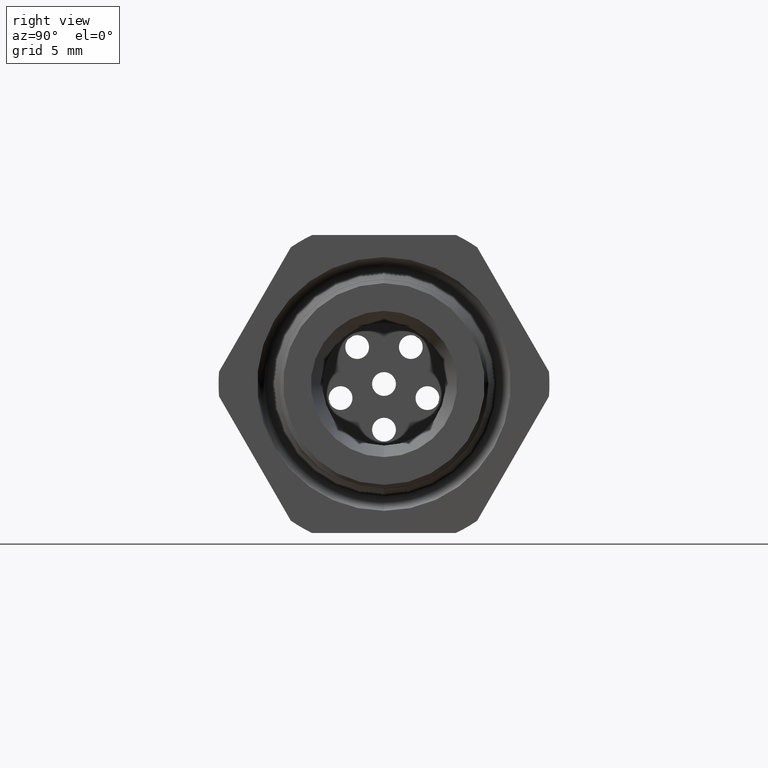
[diagram: clean part render]
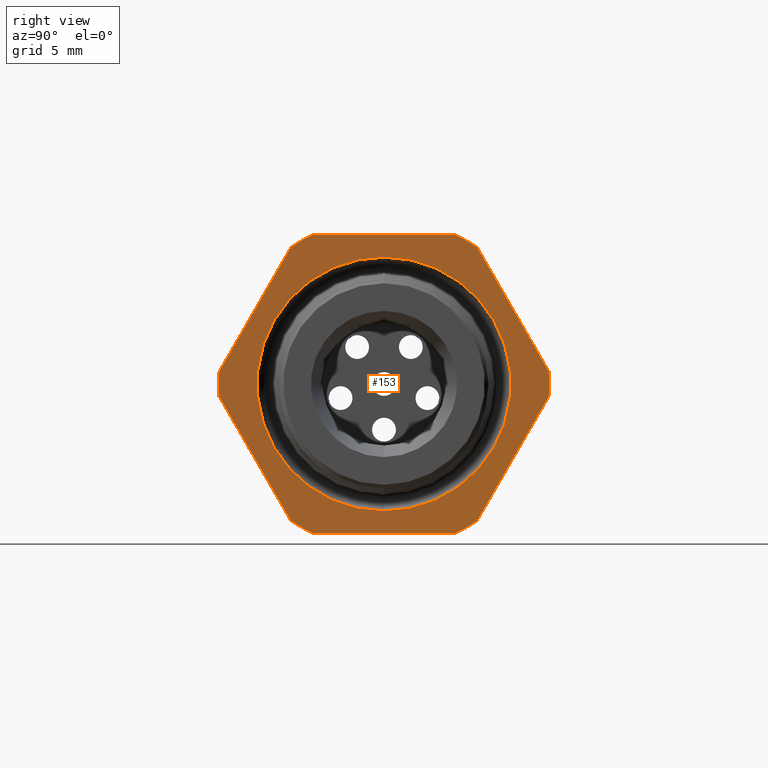
[diagram: same view with one face highlighted and labeled with its STEP entity id]
A machine part, right view. The second image highlights one B-rep face of the part: STEP entity #153.
In plain terms, the highlighted planar face has unit normal (1, 0, 0).
Its self-contained STEP definition (entity closure, byte-faithful):
#74 = EDGE_CURVE ( 'NONE', #75, #76, #2068, .T. ) ;
#75 = VERTEX_POINT ( 'NONE', #2058 ) ;
#76 = VERTEX_POINT ( 'NONE', #2057 ) ;
#77 = ORIENTED_EDGE ( 'NONE', *, *, #78, .T. ) ;
#78 = EDGE_CURVE ( 'NONE', #76, #79, #2056, .T. ) ;
#79 = VERTEX_POINT ( 'NONE', #2109 ) ;
#80 = ORIENTED_EDGE ( 'NONE', *, *, #81, .T. ) ;
#81 = EDGE_CURVE ( 'NONE', #79, #82, #2108, .T. ) ;
#82 = VERTEX_POINT ( 'NONE', #2104 ) ;
#94 = EDGE_LOOP ( 'NONE', ( #154, #156 ) ) ;
#124 = VERTEX_POINT ( 'NONE', #2203 ) ;
#125 = ORIENTED_EDGE ( 'NONE', *, *, #126, .T. ) ;
#126 = EDGE_CURVE ( 'NONE', #124, #127, #2202, .T. ) ;
#127 = VERTEX_POINT ( 'NONE', #2198 ) ;
#128 = ORIENTED_EDGE ( 'NONE', *, *, #129, .T. ) ;
#129 = EDGE_CURVE ( 'NONE', #127, #130, #2197, .T. ) ;
#130 = VERTEX_POINT ( 'NONE', #2192 ) ;
#131 = ORIENTED_EDGE ( 'NONE', *, *, #132, .T. ) ;
#132 = EDGE_CURVE ( 'NONE', #130, #133, #2191, .T. ) ;
#133 = VERTEX_POINT ( 'NONE', #2187 ) ;
#134 = ORIENTED_EDGE ( 'NONE', *, *, #135, .T. ) ;
#135 = EDGE_CURVE ( 'NONE', #133, #75, #2186, .T. ) ;
#139 = ORIENTED_EDGE ( 'NONE', *, *, #140, .T. ) ;
#140 = EDGE_CURVE ( 'NONE', #82, #141, #2174, .T. ) ;
#141 = VERTEX_POINT ( 'NONE', #2236 ) ;
#142 = ORIENTED_EDGE ( 'NONE', *, *, #143, .T. ) ;
#143 = EDGE_CURVE ( 'NONE', #141, #144, #2235, .T. ) ;
#144 = VERTEX_POINT ( 'NONE', #2231 ) ;
#145 = ORIENTED_EDGE ( 'NONE', *, *, #146, .T. ) ;
#146 = EDGE_CURVE ( 'NONE', #144, #147, #2230, .T. ) ;
#147 = VERTEX_POINT ( 'NONE', #2225 ) ;
#148 = ORIENTED_EDGE ( 'NONE', *, *, #149, .T. ) ;
#149 = EDGE_CURVE ( 'NONE', #147, #150, #2224, .T. ) ;
#150 = VERTEX_POINT ( 'NONE', #2220 ) ;
#151 = ORIENTED_EDGE ( 'NONE', *, *, #152, .T. ) ;
#152 = EDGE_CURVE ( 'NONE', #150, #124, #2219, .T. ) ;
#153 = ADVANCED_FACE ( 'NONE', ( #2214, #2213 ), #2212, .T. ) ;
#154 = ORIENTED_EDGE ( 'NONE', *, *, #155, .F. ) ;
#155 = EDGE_CURVE ( 'NONE', #1639, #1636, #2271, .T. ) ;
#156 = ORIENTED_EDGE ( 'NONE', *, *, #1638, .F. ) ;
#157 = EDGE_LOOP ( 'NONE', ( #158, #77, #80, #139, #142, #145, #148, #151, #125, #128, #131, #134 ) ) ;
#158 = ORIENTED_EDGE ( 'NONE', *, *, #74, .T. ) ;
#1636 = VERTEX_POINT ( 'NONE', #4867 ) ;
#1638 = EDGE_CURVE ( 'NONE', #1636, #1639, #4866, .T. ) ;
#1639 = VERTEX_POINT ( 'NONE', #4861 ) ;
#2054 = CARTESIAN_POINT ( 'NONE',  ( -0.3100000000000000000, 0.0000000000000000000, 0.0000000000000000000 ) ) ;
#2055 = AXIS2_PLACEMENT_3D ( 'NONE', #2054, #2111, #2110 ) ;
#2056 = CIRCLE ( 'NONE', #2055, 0.4162500000000000100 ) ;
#2057 = CARTESIAN_POINT ( 'NONE',  ( -0.3100000000000000000, 0.4150909474475088000, -0.03104138925901222000 ) ) ;
#2058 = CARTESIAN_POINT ( 'NONE',  ( -0.3100000000000000000, 0.2344281053908202900, -0.3439586107409879900 ) ) ;
#2059 = DIRECTION ( 'NONE',  ( 0.0000000000000000000, 0.5000000000000000000, 0.8660254037844386000 ) ) ;
#2060 = VECTOR ( 'NONE', #2059, 39.37007874015748900 ) ;
#2061 = CARTESIAN_POINT ( 'NONE',  ( -0.3100000000000000000, 0.5122595264191646100, 0.1372595264191644700 ) ) ;
#2068 = LINE ( 'NONE', #2061, #2060 ) ;
#2104 = CARTESIAN_POINT ( 'NONE',  ( -0.3100000000000000000, 0.2344281053908206000, 0.3439586107409877100 ) ) ;
#2105 = DIRECTION ( 'NONE',  ( 0.0000000000000000000, -0.4999999999999998900, 0.8660254037844386000 ) ) ;
#2106 = VECTOR ( 'NONE', #2105, 39.37007874015748100 ) ;
#2107 = CARTESIAN_POINT ( 'NONE',  ( -0.3100000000000000000, 0.5122595264191646100, -0.1372595264191644500 ) ) ;
#2108 = LINE ( 'NONE', #2107, #2106 ) ;
#2109 = CARTESIAN_POINT ( 'NONE',  ( -0.3100000000000000000, 0.4150909474475088000, 0.03104138925901233200 ) ) ;
#2110 = DIRECTION ( 'NONE',  ( 0.0000000000000000000, 0.0000000000000000000, -1.000000000000000000 ) ) ;
#2111 = DIRECTION ( 'NONE',  ( 1.000000000000000000, 0.0000000000000000000, 0.0000000000000000000 ) ) ;
#2174 = CIRCLE ( 'NONE', #2239, 0.4162499999999999500 ) ;
#2179 = CARTESIAN_POINT ( 'NONE',  ( -0.3100000000000000000, 0.0000000000000000000, 0.0000000000000000000 ) ) ;
#2182 = DIRECTION ( 'NONE',  ( 0.0000000000000000000, 0.0000000000000000000, -1.000000000000000000 ) ) ;
#2183 = DIRECTION ( 'NONE',  ( 1.000000000000000000, 0.0000000000000000000, 0.0000000000000000000 ) ) ;
#2184 = CARTESIAN_POINT ( 'NONE',  ( -0.3100000000000000000, 0.0000000000000000000, 0.0000000000000000000 ) ) ;
#2185 = AXIS2_PLACEMENT_3D ( 'NONE', #2184, #2183, #2182 ) ;
#2186 = CIRCLE ( 'NONE', #2185, 0.4162500000000000100 ) ;
#2187 = CARTESIAN_POINT ( 'NONE',  ( -0.3100000000000000000, 0.1806628420566884800, -0.3750000000000001100 ) ) ;
#2188 = DIRECTION ( 'NONE',  ( 0.0000000000000000000, 1.000000000000000000, 0.0000000000000000000 ) ) ;
#2189 = VECTOR ( 'NONE', #2188, 39.37007874015748100 ) ;
#2190 = CARTESIAN_POINT ( 'NONE',  ( -0.3100000000000000000, 0.7500000000000001100, -0.3750000000000001100 ) ) ;
#2191 = LINE ( 'NONE', #2190, #2189 ) ;
#2192 = CARTESIAN_POINT ( 'NONE',  ( -0.3100000000000000000, -0.1806628420566883900, -0.3750000000000001100 ) ) ;
#2193 = DIRECTION ( 'NONE',  ( 0.0000000000000000000, 0.0000000000000000000, -1.000000000000000000 ) ) ;
#2194 = DIRECTION ( 'NONE',  ( 1.000000000000000000, 0.0000000000000000000, 0.0000000000000000000 ) ) ;
#2195 = CARTESIAN_POINT ( 'NONE',  ( -0.3100000000000000000, 0.0000000000000000000, 0.0000000000000000000 ) ) ;
#2196 = AXIS2_PLACEMENT_3D ( 'NONE', #2195, #2194, #2193 ) ;
#2197 = CIRCLE ( 'NONE', #2196, 0.4162500000000000100 ) ;
#2198 = CARTESIAN_POINT ( 'NONE',  ( -0.3100000000000000000, -0.2344281053908202100, -0.3439586107409880500 ) ) ;
#2199 = DIRECTION ( 'NONE',  ( 0.0000000000000000000, 0.5000000000000003300, -0.8660254037844383700 ) ) ;
#2200 = VECTOR ( 'NONE', #2199, 39.37007874015748100 ) ;
#2201 = CARTESIAN_POINT ( 'NONE',  ( -0.3100000000000000000, -0.1372595264191642800, -0.5122595264191648300 ) ) ;
#2202 = LINE ( 'NONE', #2201, #2200 ) ;
#2203 = CARTESIAN_POINT ( 'NONE',  ( -0.3100000000000000000, -0.4150909474475088000, -0.03104138925901237000 ) ) ;
#2209 = DIRECTION ( 'NONE',  ( 1.000000000000000000, 0.0000000000000000000, 0.0000000000000000000 ) ) ;
#2210 = CARTESIAN_POINT ( 'NONE',  ( -0.3100000000000000000, 0.7500000000000001100, 0.0000000000000000000 ) ) ;
#2211 = AXIS2_PLACEMENT_3D ( 'NONE', #2210, #2209, #2272 ) ;
#2212 = PLANE ( 'NONE',  #2211 ) ;
#2213 = FACE_OUTER_BOUND ( 'NONE', #157, .T. ) ;
#2214 = FACE_BOUND ( 'NONE', #94, .T. ) ;
#2215 = DIRECTION ( 'NONE',  ( 0.0000000000000000000, 0.0000000000000000000, -1.000000000000000000 ) ) ;
#2216 = DIRECTION ( 'NONE',  ( 1.000000000000000000, 0.0000000000000000000, 0.0000000000000000000 ) ) ;
#2217 = CARTESIAN_POINT ( 'NONE',  ( -0.3100000000000000000, 0.0000000000000000000, 0.0000000000000000000 ) ) ;
#2218 = AXIS2_PLACEMENT_3D ( 'NONE', #2217, #2216, #2215 ) ;
#2219 = CIRCLE ( 'NONE', #2218, 0.4162500000000000100 ) ;
#2220 = CARTESIAN_POINT ( 'NONE',  ( -0.3100000000000000000, -0.4150909474475088000, 0.03104138925901241800 ) ) ;
#2221 = DIRECTION ( 'NONE',  ( 0.0000000000000000000, -0.4999999999999998300, -0.8660254037844386000 ) ) ;
#2222 = VECTOR ( 'NONE', #2221, 39.37007874015748900 ) ;
#2223 = CARTESIAN_POINT ( 'NONE',  ( -0.3100000000000000000, -0.1372595264191648300, 0.5122595264191645000 ) ) ;
#2224 = LINE ( 'NONE', #2223, #2222 ) ;
#2225 = CARTESIAN_POINT ( 'NONE',  ( -0.3100000000000000000, -0.2344281053908205100, 0.3439586107409878200 ) ) ;
#2226 = DIRECTION ( 'NONE',  ( 0.0000000000000000000, 0.0000000000000000000, -1.000000000000000000 ) ) ;
#2227 = DIRECTION ( 'NONE',  ( 1.000000000000000000, 0.0000000000000000000, 0.0000000000000000000 ) ) ;
#2228 = CARTESIAN_POINT ( 'NONE',  ( -0.3100000000000000000, 0.0000000000000000000, 0.0000000000000000000 ) ) ;
#2229 = AXIS2_PLACEMENT_3D ( 'NONE', #2228, #2227, #2226 ) ;
#2230 = CIRCLE ( 'NONE', #2229, 0.4162500000000000100 ) ;
#2231 = CARTESIAN_POINT ( 'NONE',  ( -0.3100000000000000000, -0.1806628420566886700, 0.3749999999999999400 ) ) ;
#2232 = DIRECTION ( 'NONE',  ( 0.0000000000000000000, -1.000000000000000000, 0.0000000000000000000 ) ) ;
#2233 = VECTOR ( 'NONE', #2232, 39.37007874015748100 ) ;
#2234 = CARTESIAN_POINT ( 'NONE',  ( -0.3100000000000000000, 0.7500000000000001100, 0.3749999999999999400 ) ) ;
#2235 = LINE ( 'NONE', #2234, #2233 ) ;
#2236 = CARTESIAN_POINT ( 'NONE',  ( -0.3100000000000000000, 0.1806628420566887000, 0.3749999999999999400 ) ) ;
#2237 = DIRECTION ( 'NONE',  ( 0.0000000000000000000, 0.0000000000000000000, -1.000000000000000000 ) ) ;
#2238 = DIRECTION ( 'NONE',  ( 1.000000000000000000, 0.0000000000000000000, 0.0000000000000000000 ) ) ;
#2239 = AXIS2_PLACEMENT_3D ( 'NONE', #2179, #2238, #2237 ) ;
#2267 = DIRECTION ( 'NONE',  ( 0.0000000000000000000, 0.0000000000000000000, -1.000000000000000000 ) ) ;
#2268 = DIRECTION ( 'NONE',  ( 1.000000000000000000, 0.0000000000000000000, 0.0000000000000000000 ) ) ;
#2269 = CARTESIAN_POINT ( 'NONE',  ( -0.3100000000000000000, 0.0000000000000000000, 0.0000000000000000000 ) ) ;
#2270 = AXIS2_PLACEMENT_3D ( 'NONE', #2269, #2268, #2267 ) ;
#2271 = CIRCLE ( 'NONE', #2270, 0.3192456312392313900 ) ;
#2272 = DIRECTION ( 'NONE',  ( 0.0000000000000000000, 0.0000000000000000000, -1.000000000000000000 ) ) ;
#4861 = CARTESIAN_POINT ( 'NONE',  ( -0.3100000000000000000, 0.0000000000000000000, -0.3192456312392313900 ) ) ;
#4862 = DIRECTION ( 'NONE',  ( 0.0000000000000000000, 0.0000000000000000000, -1.000000000000000000 ) ) ;
#4863 = DIRECTION ( 'NONE',  ( 1.000000000000000000, 0.0000000000000000000, 0.0000000000000000000 ) ) ;
#4864 = CARTESIAN_POINT ( 'NONE',  ( -0.3100000000000000000, 0.0000000000000000000, 0.0000000000000000000 ) ) ;
#4865 = AXIS2_PLACEMENT_3D ( 'NONE', #4864, #4863, #4862 ) ;
#4866 = CIRCLE ( 'NONE', #4865, 0.3192456312392313900 ) ;
#4867 = CARTESIAN_POINT ( 'NONE',  ( -0.3100000000000000000, 3.909631404389010100E-017, 0.3192456312392313900 ) ) ;